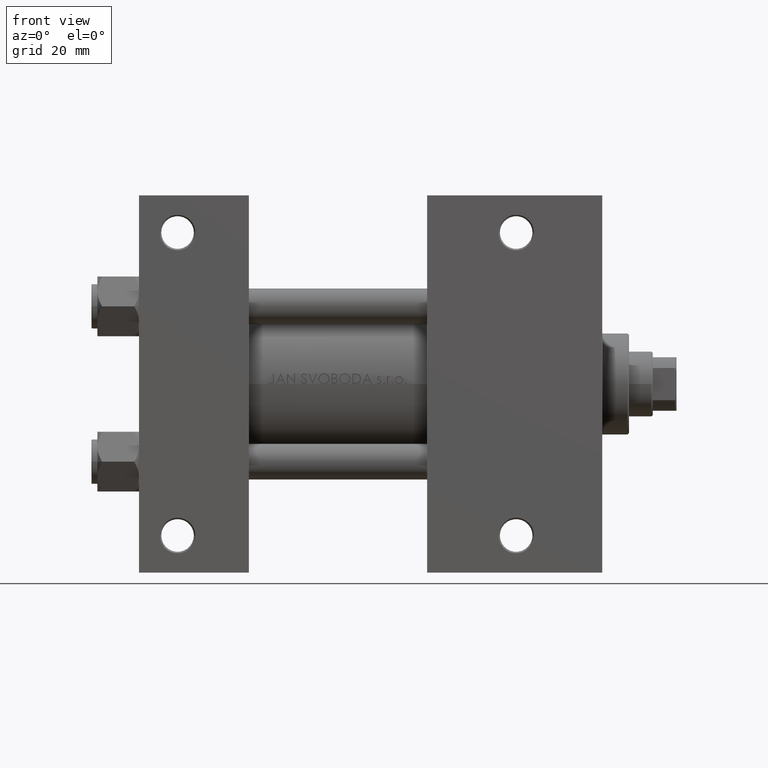
[diagram: clean part render]
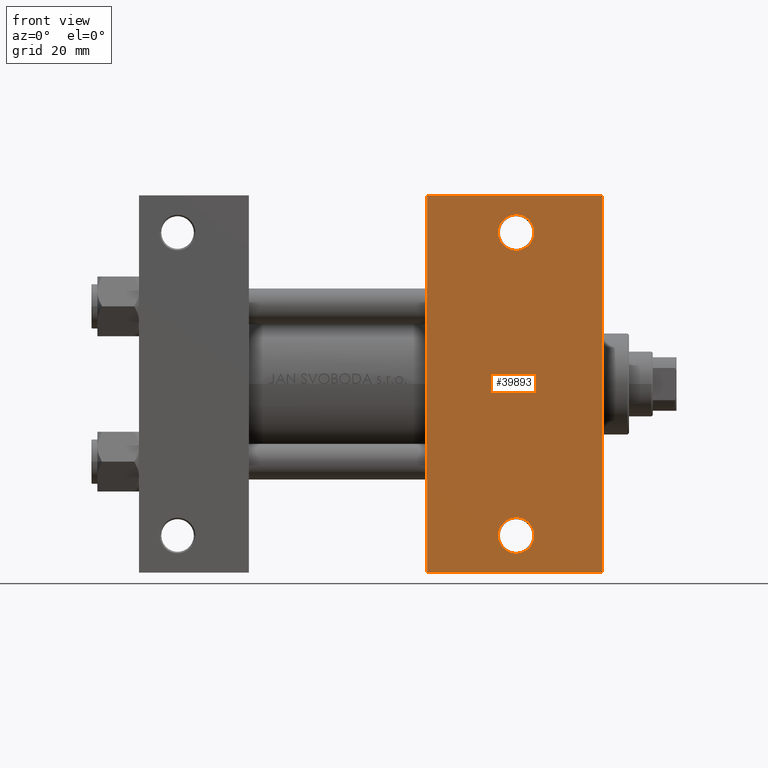
[diagram: same view with one face highlighted and labeled with its STEP entity id]
A machine part, front view. The second image highlights one B-rep face of the part: STEP entity #39893.
In plain terms, the highlighted planar face has unit normal (0, -1, 0).
Its self-contained STEP definition (entity closure, byte-faithful):
#710 = AXIS2_PLACEMENT_3D ( 'NONE', #29845, #45018, #44519 ) ;
#1074 = CARTESIAN_POINT ( 'NONE',  ( 156.0000000000000000, 37.50000000000000000, -37.50000000000000000 ) ) ;
#1145 = LINE ( 'NONE', #35037, #40613 ) ;
#1489 = VECTOR ( 'NONE', #45806, 1000.000000000000000 ) ;
#2826 = DIRECTION ( 'NONE',  ( -1.000000000000000000, 0.000000000000000000, 0.000000000000000000 ) ) ;
#3336 = EDGE_CURVE ( 'NONE', #21695, #10340, #27325, .T. ) ;
#3378 = AXIS2_PLACEMENT_3D ( 'NONE', #18642, #33863, #46532 ) ;
#3464 = PLANE ( 'NONE',  #3378 ) ;
#4124 = ORIENTED_EDGE ( 'NONE', *, *, #30530, .T. ) ;
#4440 = CARTESIAN_POINT ( 'NONE',  ( 97.00000000000000000, 63.50000000000000000, -37.50000000000000000 ) ) ;
#4921 = ORIENTED_EDGE ( 'NONE', *, *, #47465, .T. ) ;
#5008 = AXIS2_PLACEMENT_3D ( 'NONE', #11122, #38304, #11872 ) ;
#7182 = FACE_BOUND ( 'NONE', #17653, .T. ) ;
#7486 = CARTESIAN_POINT ( 'NONE',  ( 96.99999999999998579, -63.50000000000000000, -37.50000000000000000 ) ) ;
#8154 = VERTEX_POINT ( 'NONE', #15834 ) ;
#10340 = VERTEX_POINT ( 'NONE', #27406 ) ;
#10390 = CIRCLE ( 'NONE', #18358, 5.999499999999990507 ) ;
#10580 = ORIENTED_EDGE ( 'NONE', *, *, #3336, .T. ) ;
#11122 = CARTESIAN_POINT ( 'NONE',  ( 127.0000000000000000, 51.00000000000000000, -37.50000000000000000 ) ) ;
#11400 = VERTEX_POINT ( 'NONE', #18198 ) ;
#11782 = LINE ( 'NONE', #1074, #19451 ) ;
#11872 = DIRECTION ( 'NONE',  ( -1.000000000000000000, 0.000000000000000000, 0.000000000000000000 ) ) ;
#12277 = DIRECTION ( 'NONE',  ( 0.000000000000000000, -1.000000000000000000, 0.000000000000000000 ) ) ;
#12418 = VERTEX_POINT ( 'NONE', #48185 ) ;
#13631 = AXIS2_PLACEMENT_3D ( 'NONE', #37771, #30797, #19065 ) ;
#15018 = CARTESIAN_POINT ( 'NONE',  ( 126.9999999999999716, -51.00000000000000711, -37.50000000000000000 ) ) ;
#15834 = CARTESIAN_POINT ( 'NONE',  ( 121.0004999999999882, -51.00000000000000711, -37.50000000000000000 ) ) ;
#17045 = ORIENTED_EDGE ( 'NONE', *, *, #25499, .T. ) ;
#17404 = VECTOR ( 'NONE', #22700, 1000.000000000000000 ) ;
#17653 = EDGE_LOOP ( 'NONE', ( #37819, #17045 ) ) ;
#18198 = CARTESIAN_POINT ( 'NONE',  ( 156.0000000000000000, 63.50000000000000000, -37.50000000000000000 ) ) ;
#18252 = DIRECTION ( 'NONE',  ( -0.000000000000000000, -0.000000000000000000, 1.000000000000000000 ) ) ;
#18358 = AXIS2_PLACEMENT_3D ( 'NONE', #15018, #18252, #2826 ) ;
#18642 = CARTESIAN_POINT ( 'NONE',  ( 156.0000000000000000, 37.50000000000000000, -37.50000000000000000 ) ) ;
#19065 = DIRECTION ( 'NONE',  ( -1.000000000000000000, 0.000000000000000000, 0.000000000000000000 ) ) ;
#19451 = VECTOR ( 'NONE', #12277, 1000.000000000000000 ) ;
#20055 = ORIENTED_EDGE ( 'NONE', *, *, #22069, .T. ) ;
#21695 = VERTEX_POINT ( 'NONE', #38896 ) ;
#22069 = EDGE_CURVE ( 'NONE', #10340, #21695, #24557, .T. ) ;
#22700 = DIRECTION ( 'NONE',  ( -1.000000000000000000, 4.704334850106596780E-16, -0.000000000000000000 ) ) ;
#23179 = VERTEX_POINT ( 'NONE', #28355 ) ;
#24317 = EDGE_CURVE ( 'NONE', #47613, #12418, #1145, .T. ) ;
#24557 = CIRCLE ( 'NONE', #710, 5.999499999999990507 ) ;
#25235 = EDGE_LOOP ( 'NONE', ( #27915, #4124, #4921, #29148 ) ) ;
#25499 = EDGE_CURVE ( 'NONE', #35991, #8154, #10390, .T. ) ;
#26135 = LINE ( 'NONE', #4440, #1489 ) ;
#26177 = CARTESIAN_POINT ( 'NONE',  ( 132.9994999999999550, -51.00000000000000711, -37.50000000000000000 ) ) ;
#27325 = CIRCLE ( 'NONE', #5008, 5.999499999999990507 ) ;
#27406 = CARTESIAN_POINT ( 'NONE',  ( 132.9994999999999834, 51.00000000000000000, -37.50000000000000000 ) ) ;
#27915 = ORIENTED_EDGE ( 'NONE', *, *, #24317, .F. ) ;
#27988 = EDGE_LOOP ( 'NONE', ( #10580, #20055 ) ) ;
#28355 = CARTESIAN_POINT ( 'NONE',  ( 155.9999999999999716, -63.50000000000002842, -37.50000000000000000 ) ) ;
#29148 = ORIENTED_EDGE ( 'NONE', *, *, #30236, .T. ) ;
#29845 = CARTESIAN_POINT ( 'NONE',  ( 127.0000000000000000, 51.00000000000000000, -37.50000000000000000 ) ) ;
#30236 = EDGE_CURVE ( 'NONE', #23179, #12418, #41632, .T. ) ;
#30398 = CIRCLE ( 'NONE', #13631, 5.999499999999990507 ) ;
#30530 = EDGE_CURVE ( 'NONE', #47613, #11400, #26135, .T. ) ;
#30797 = DIRECTION ( 'NONE',  ( -0.000000000000000000, -0.000000000000000000, 1.000000000000000000 ) ) ;
#32211 = CARTESIAN_POINT ( 'NONE',  ( 97.00000000000000000, 63.50000000000000000, -37.50000000000000000 ) ) ;
#33863 = DIRECTION ( 'NONE',  ( 0.000000000000000000, 0.000000000000000000, -1.000000000000000000 ) ) ;
#35037 = CARTESIAN_POINT ( 'NONE',  ( 97.00000000000000000, 37.50000000000000000, -37.50000000000000000 ) ) ;
#35991 = VERTEX_POINT ( 'NONE', #26177 ) ;
#37589 = FACE_OUTER_BOUND ( 'NONE', #25235, .T. ) ;
#37734 = EDGE_CURVE ( 'NONE', #8154, #35991, #30398, .T. ) ;
#37771 = CARTESIAN_POINT ( 'NONE',  ( 126.9999999999999716, -51.00000000000000711, -37.50000000000000000 ) ) ;
#37819 = ORIENTED_EDGE ( 'NONE', *, *, #37734, .T. ) ;
#38304 = DIRECTION ( 'NONE',  ( -0.000000000000000000, -0.000000000000000000, 1.000000000000000000 ) ) ;
#38896 = CARTESIAN_POINT ( 'NONE',  ( 121.0005000000000166, 51.00000000000000000, -37.50000000000000000 ) ) ;
#39025 = DIRECTION ( 'NONE',  ( 0.000000000000000000, -1.000000000000000000, 0.000000000000000000 ) ) ;
#39893 = ADVANCED_FACE ( 'NONE', ( #41328, #7182, #37589 ), #3464, .T. ) ;
#40613 = VECTOR ( 'NONE', #39025, 1000.000000000000000 ) ;
#41328 = FACE_BOUND ( 'NONE', #27988, .T. ) ;
#41632 = LINE ( 'NONE', #7486, #17404 ) ;
#44519 = DIRECTION ( 'NONE',  ( -1.000000000000000000, 0.000000000000000000, 0.000000000000000000 ) ) ;
#45018 = DIRECTION ( 'NONE',  ( -0.000000000000000000, -0.000000000000000000, 1.000000000000000000 ) ) ;
#45806 = DIRECTION ( 'NONE',  ( 1.000000000000000000, 0.000000000000000000, 0.000000000000000000 ) ) ;
#46532 = DIRECTION ( 'NONE',  ( -1.000000000000000000, 0.000000000000000000, -0.000000000000000000 ) ) ;
#47465 = EDGE_CURVE ( 'NONE', #11400, #23179, #11782, .T. ) ;
#47613 = VERTEX_POINT ( 'NONE', #32211 ) ;
#48185 = CARTESIAN_POINT ( 'NONE',  ( 96.99999999999998579, -63.50000000000000000, -37.50000000000000000 ) ) ;